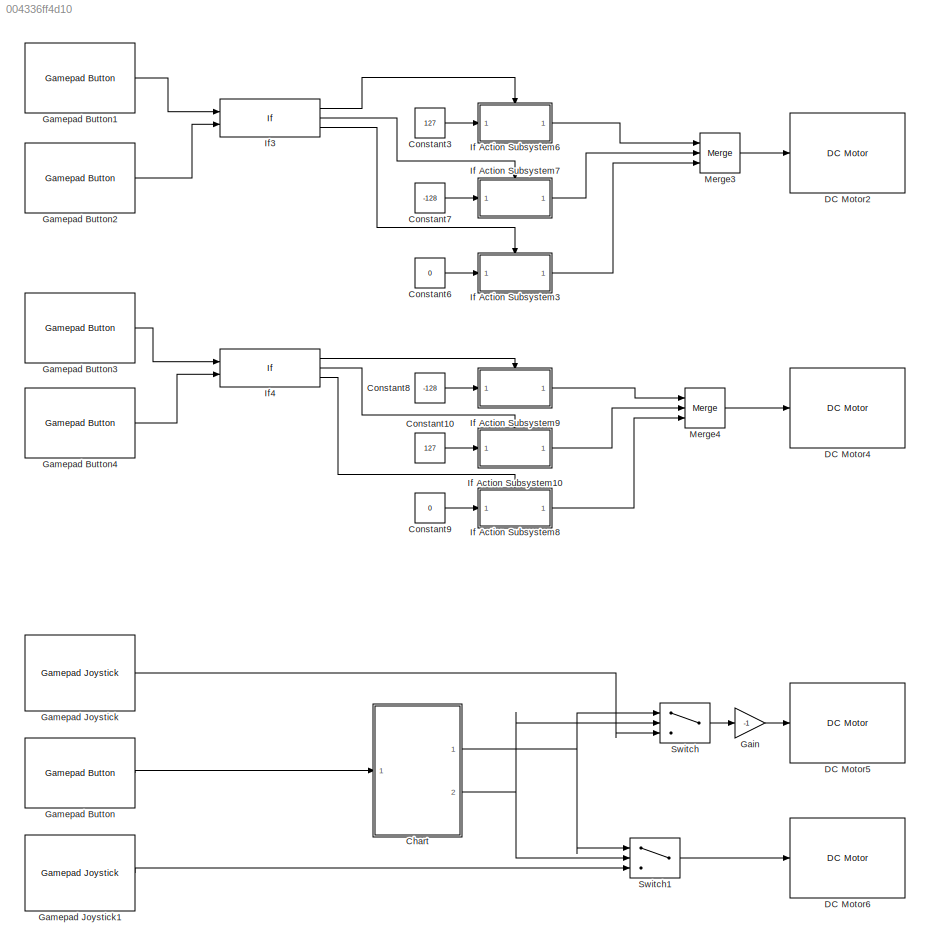
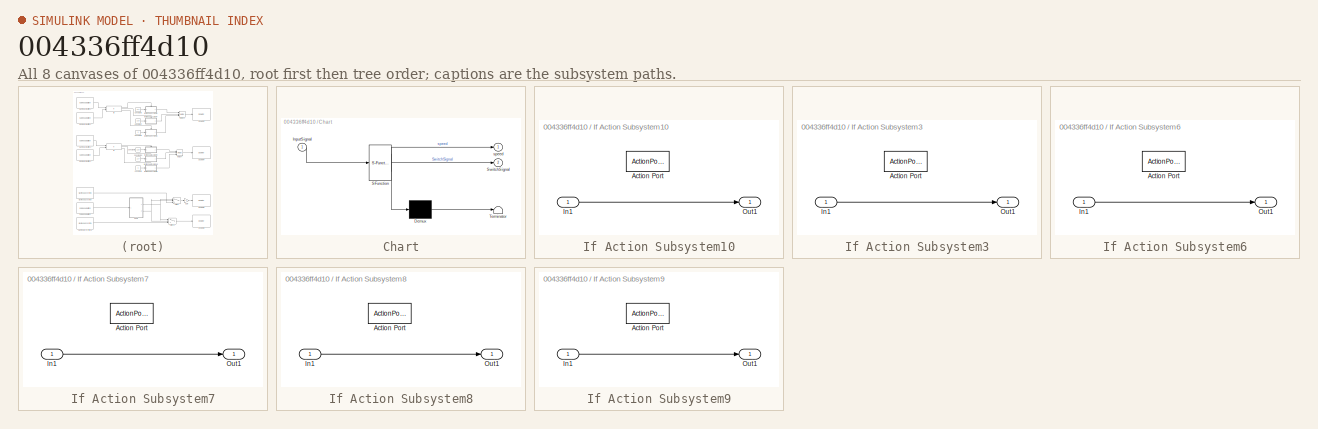
[diagram: thumbnail index - all 8 canvases of the model, root first then tree order]
MODEL slx_004336ff4d10
KIND model
CONFIG AbsTol = auto
CONFIG EnableMultiTasking = off
CONFIG FixedStep = auto
CONFIG MaxStep = auto
CONFIG MinStep = auto
CONFIG RelTol = 1e-3
CONFIG SampleTimeConstraint = Unconstrained
CONFIG Solver = VariableStepAuto
CONFIG SolverName = VariableStepAuto
CONFIG StartTime = 0.0
CONFIG StopTime = 10.0
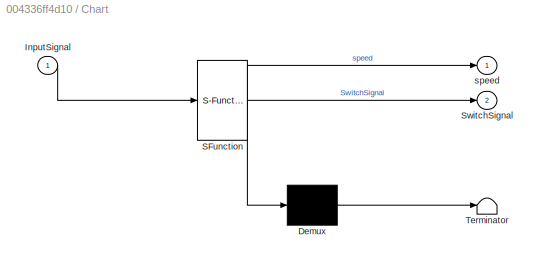
BLOCK [SubSystem] Chart
  BlockKeywords = __PRM__SERIALIZED__DATA__:Stateflow Chart,Stateflow Diagram
  ErrorFcn = Stateflow.Translate.translate
  PermitHierarchicalResolution = ExplicitOnly
  Ports = [1, 2]
  RequestExecContextInheritance = off
  SFBlockType = Chart
  TreatAsAtomicUnit = on
BLOCK [Demux] Chart/ Demux 
  Outputs = 1
  Ports = [1, 1]
BLOCK [S-Function] Chart/ SFunction 
  EnableBusSupport = on
  FunctionName = sf_sfun
  PortCounts = [1 3]
  Ports = [1, 3]
  SFcnIsStateOwnerBlock = off
  SFunctionDeploymentMode = off
  Tag = Stateflow S-Function matlab1 3
BLOCK [Terminator] Chart/ Terminator 
BLOCK [Inport] Chart/InputSignal
  IconDisplay = Port number
BLOCK [Outport] Chart/SwitchSignal
  IconDisplay = Port number
  Port = 2
BLOCK [Outport] Chart/speed
  IconDisplay = Port number
BLOCK [Constant] Constant10
  Value = 127
BLOCK [Constant] Constant3
  Value = 127
BLOCK [Constant] Constant6
  Value = 0
BLOCK [Constant] Constant7
  Value = -128
BLOCK [Constant] Constant8
  Value = -128
BLOCK [Constant] Constant9
  Value = 0
BLOCK [Reference] DC Motor2  REF=vexarmcortexlib/Actuators/DC Motor
  Ports = [1]
  SourceBlock = vexarmcortexlib/Actuators/DC Motor
  SourceProductBaseCode = EC_VEX_MICRO
  SourceProductName = Simulink Coder Support Package for ARM Cortex-based VEX Microcontroller
  SourceType = DC Motor
BLOCK [Reference] DC Motor4  REF=vexarmcortexlib/Actuators/DC Motor
  Ports = [1]
  SourceBlock = vexarmcortexlib/Actuators/DC Motor
  SourceProductBaseCode = EC_VEX_MICRO
  SourceProductName = Simulink Coder Support Package for ARM Cortex-based VEX Microcontroller
  SourceType = DC Motor
BLOCK [Reference] DC Motor5  REF=vexarmcortexlib/Actuators/DC Motor
  Ports = [1]
  SourceBlock = vexarmcortexlib/Actuators/DC Motor
  SourceProductBaseCode = EC_VEX_MICRO
  SourceProductName = Simulink Coder Support Package for ARM Cortex-based VEX Microcontroller
  SourceType = DC Motor
BLOCK [Reference] DC Motor6  REF=vexarmcortexlib/Actuators/DC Motor
  Ports = [1]
  SourceBlock = vexarmcortexlib/Actuators/DC Motor
  SourceProductBaseCode = EC_VEX_MICRO
  SourceProductName = Simulink Coder Support Package for ARM Cortex-based VEX Microcontroller
  SourceType = DC Motor
BLOCK [Gain] Gain
  Gain = -1
  OutDataTypeStr = Inherit: Inherit via internal rule
  ParamDataTypeStr = Inherit: Inherit via internal rule
  SaturateOnIntegerOverflow = off
BLOCK [Reference] Gamepad Button  REF=vexarmcortexlib/Gamepad/Gamepad Button
  Ports = [0, 1]
  SourceBlock = vexarmcortexlib/Gamepad/Gamepad Button
  SourceProductBaseCode = EC_VEX_MICRO
  SourceProductName = Simulink Coder Support Package for ARM Cortex-based VEX Microcontroller
  SourceType = Gamepad Button
BLOCK [Reference] Gamepad Button1  REF=vexarmcortexlib/Gamepad/Gamepad Button
  Ports = [0, 1]
  SourceBlock = vexarmcortexlib/Gamepad/Gamepad Button
  SourceProductBaseCode = EC_VEX_MICRO
  SourceProductName = Simulink Coder Support Package for ARM Cortex-based VEX Microcontroller
  SourceType = Gamepad Button
BLOCK [Reference] Gamepad Button2  REF=vexarmcortexlib/Gamepad/Gamepad Button
  Ports = [0, 1]
  SourceBlock = vexarmcortexlib/Gamepad/Gamepad Button
  SourceProductBaseCode = EC_VEX_MICRO
  SourceProductName = Simulink Coder Support Package for ARM Cortex-based VEX Microcontroller
  SourceType = Gamepad Button
BLOCK [Reference] Gamepad Button3  REF=vexarmcortexlib/Gamepad/Gamepad Button
  Ports = [0, 1]
  SourceBlock = vexarmcortexlib/Gamepad/Gamepad Button
  SourceProductBaseCode = EC_VEX_MICRO
  SourceProductName = Simulink Coder Support Package for ARM Cortex-based VEX Microcontroller
  SourceType = Gamepad Button
BLOCK [Reference] Gamepad Button4  REF=vexarmcortexlib/Gamepad/Gamepad Button
  Ports = [0, 1]
  SourceBlock = vexarmcortexlib/Gamepad/Gamepad Button
  SourceProductBaseCode = EC_VEX_MICRO
  SourceProductName = Simulink Coder Support Package for ARM Cortex-based VEX Microcontroller
  SourceType = Gamepad Button
BLOCK [Reference] Gamepad Joystick  REF=vexarmcortexlib/Gamepad/Gamepad Joystick
  Ports = [0, 1]
  SourceBlock = vexarmcortexlib/Gamepad/Gamepad Joystick
  SourceProductBaseCode = EC_VEX_MICRO
  SourceProductName = Simulink Coder Support Package for ARM Cortex-based VEX Microcontroller
  SourceType = Gamepad Joystick
BLOCK [Reference] Gamepad Joystick1  REF=vexarmcortexlib/Gamepad/Gamepad Joystick
  Ports = [0, 1]
  SourceBlock = vexarmcortexlib/Gamepad/Gamepad Joystick
  SourceProductBaseCode = EC_VEX_MICRO
  SourceProductName = Simulink Coder Support Package for ARM Cortex-based VEX Microcontroller
  SourceType = Gamepad Joystick
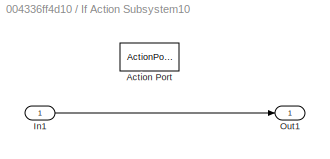
BLOCK [SubSystem] If Action Subsystem10
  Ports = [1, 1, 0, 0, 0, 0, 0, 1]
  RequestExecContextInheritance = off
  TreatAsAtomicUnit = on
BLOCK [ActionPort] If Action Subsystem10/Action Port
  ActionPortLabel = elseif(u2 > 0)
BLOCK [Inport] If Action Subsystem10/In1
  IconDisplay = Port number
BLOCK [Outport] If Action Subsystem10/Out1
  IconDisplay = Port number
  InitialOutput = 127
BLOCK [SubSystem] If Action Subsystem3
  Ports = [1, 1, 0, 0, 0, 0, 0, 1]
  RequestExecContextInheritance = off
  TreatAsAtomicUnit = on
BLOCK [ActionPort] If Action Subsystem3/Action Port
  ActionPortLabel = else
BLOCK [Inport] If Action Subsystem3/In1
  IconDisplay = Port number
BLOCK [Outport] If Action Subsystem3/Out1
  IconDisplay = Port number
BLOCK [SubSystem] If Action Subsystem6
  Ports = [1, 1, 0, 0, 0, 0, 0, 1]
  RequestExecContextInheritance = off
  TreatAsAtomicUnit = on
BLOCK [ActionPort] If Action Subsystem6/Action Port
  ActionPortLabel = if(u1 > 0)
BLOCK [Inport] If Action Subsystem6/In1
  IconDisplay = Port number
BLOCK [Outport] If Action Subsystem6/Out1
  IconDisplay = Port number
  InitialOutput = 127
BLOCK [SubSystem] If Action Subsystem7
  Ports = [1, 1, 0, 0, 0, 0, 0, 1]
  RequestExecContextInheritance = off
  TreatAsAtomicUnit = on
BLOCK [ActionPort] If Action Subsystem7/Action Port
  ActionPortLabel = elseif(u2 > 0)
BLOCK [Inport] If Action Subsystem7/In1
  IconDisplay = Port number
BLOCK [Outport] If Action Subsystem7/Out1
  IconDisplay = Port number
  InitialOutput = 127
BLOCK [SubSystem] If Action Subsystem8
  Ports = [1, 1, 0, 0, 0, 0, 0, 1]
  RequestExecContextInheritance = off
  TreatAsAtomicUnit = on
BLOCK [ActionPort] If Action Subsystem8/Action Port
  ActionPortLabel = else
BLOCK [Inport] If Action Subsystem8/In1
  IconDisplay = Port number
BLOCK [Outport] If Action Subsystem8/Out1
  IconDisplay = Port number
BLOCK [SubSystem] If Action Subsystem9
  Ports = [1, 1, 0, 0, 0, 0, 0, 1]
  RequestExecContextInheritance = off
  TreatAsAtomicUnit = on
BLOCK [ActionPort] If Action Subsystem9/Action Port
  ActionPortLabel = if(u1 > 0)
BLOCK [Inport] If Action Subsystem9/In1
  IconDisplay = Port number
BLOCK [Outport] If Action Subsystem9/Out1
  IconDisplay = Port number
  InitialOutput = 127
BLOCK [If] If3
  ElseIfExpressions = u2 > 0
  NumInputs = 2
  Ports = [2, 3]
BLOCK [If] If4
  ElseIfExpressions = u2 > 0
  NumInputs = 2
  Ports = [2, 3]
BLOCK [Merge] Merge3
  Inputs = 3
  Ports = [3, 1]
BLOCK [Merge] Merge4
  Inputs = 3
  Ports = [3, 1]
BLOCK [Switch] Switch
  Criteria = u2 > Threshold
  InputSameDT = off
  SaturateOnIntegerOverflow = off
BLOCK [Switch] Switch1
  Criteria = u2 > Threshold
  InputSameDT = off
  SaturateOnIntegerOverflow = off
NET Chart:1 -> Switch1:1, Switch:1
NET Chart:2 -> Switch1:2, Switch:2
LINE Constant10:1 -> If Action Subsystem10:1
LINE Constant3:1 -> If Action Subsystem6:1
LINE Constant6:1 -> If Action Subsystem3:1
LINE Constant7:1 -> If Action Subsystem7:1
LINE Constant8:1 -> If Action Subsystem9:1
LINE Constant9:1 -> If Action Subsystem8:1
LINE Gain:1 -> DC Motor5:1
LINE Gamepad Button1:1 -> If3:1
LINE Gamepad Button2:1 -> If3:2
LINE Gamepad Button3:1 -> If4:1
LINE Gamepad Button4:1 -> If4:2
LINE Gamepad Button:1 -> Chart:1
LINE Gamepad Joystick1:1 -> Switch1:3
LINE Gamepad Joystick:1 -> Switch:3
LINE If Action Subsystem10/In1:1 -> If Action Subsystem10/Out1:1
LINE If Action Subsystem10:1 -> Merge4:2
LINE If Action Subsystem3/In1:1 -> If Action Subsystem3/Out1:1
LINE If Action Subsystem3:1 -> Merge3:3
LINE If Action Subsystem6/In1:1 -> If Action Subsystem6/Out1:1
LINE If Action Subsystem6:1 -> Merge3:1
LINE If Action Subsystem7/In1:1 -> If Action Subsystem7/Out1:1
LINE If Action Subsystem7:1 -> Merge3:2
LINE If Action Subsystem8/In1:1 -> If Action Subsystem8/Out1:1
LINE If Action Subsystem8:1 -> Merge4:3
LINE If Action Subsystem9/In1:1 -> If Action Subsystem9/Out1:1
LINE If Action Subsystem9:1 -> Merge4:1
LINE If3:1 -> If Action Subsystem6:ifaction
LINE If3:2 -> If Action Subsystem7:ifaction
LINE If3:3 -> If Action Subsystem3:ifaction
LINE If4:1 -> If Action Subsystem9:ifaction
LINE If4:2 -> If Action Subsystem10:ifaction
LINE If4:3 -> If Action Subsystem8:ifaction
LINE Merge3:1 -> DC Motor2:1
LINE Merge4:1 -> DC Motor4:1
LINE Switch1:1 -> DC Motor6:1
LINE Switch:1 -> Gain:1
note: NET lines group one-source signal fan-out (src -> all destinations, sorted); 1:1 wires keep LINE
CHART Chart states=5 transitions=6
  STATE_LABEL 'Start\nduring:\nSwitchSignal = 0;'
  STATE_LABEL 'Push_Backwards\nduring:\nspeed=-128;'
  STATE_LABEL 'Halt\nduring:\nspeed=0;'
  STATE_LABEL 'Push_Forward\nduring:\nspeed=127;\nSwitchSignal = 1;'
  STATE_LABEL 'Stop\nduring:\nspeed=0;\nSwitchSignal = 0;'
